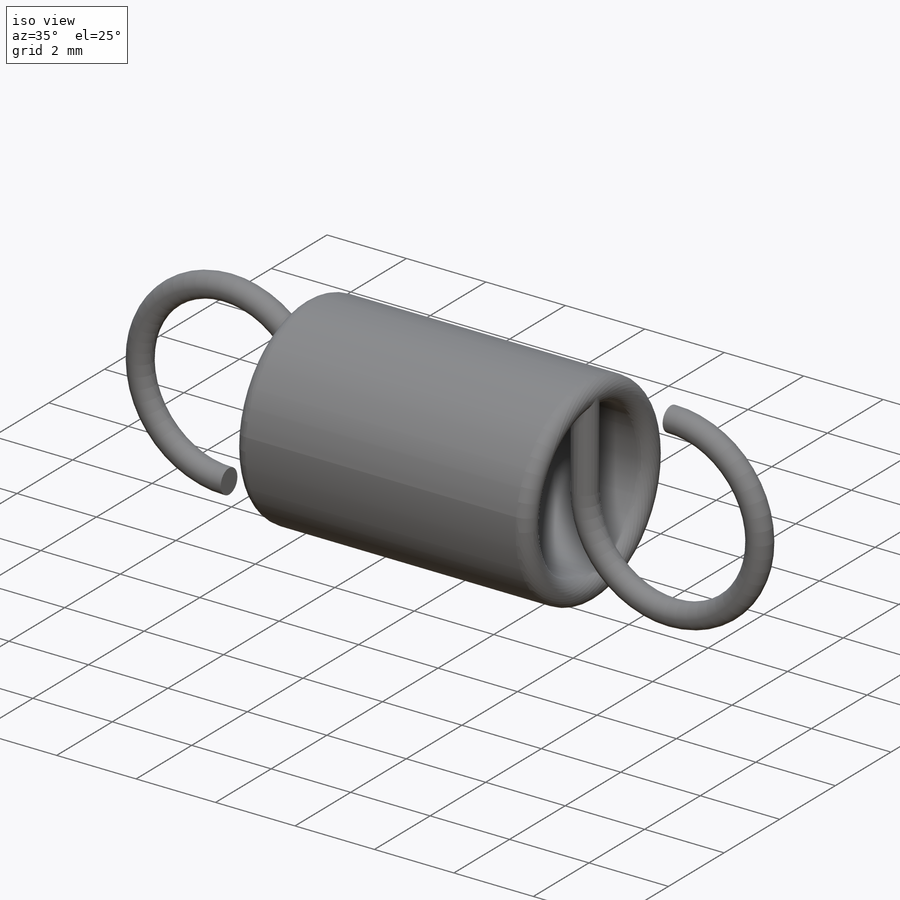
[diagram: iso view]
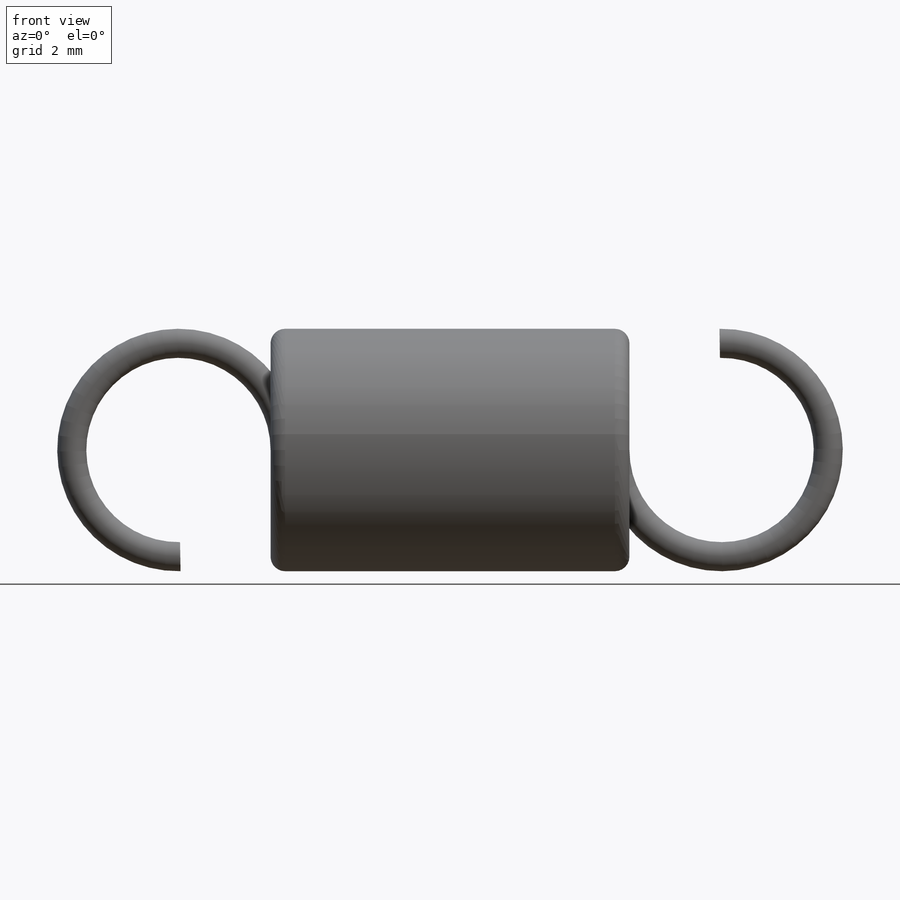
[diagram: front view]
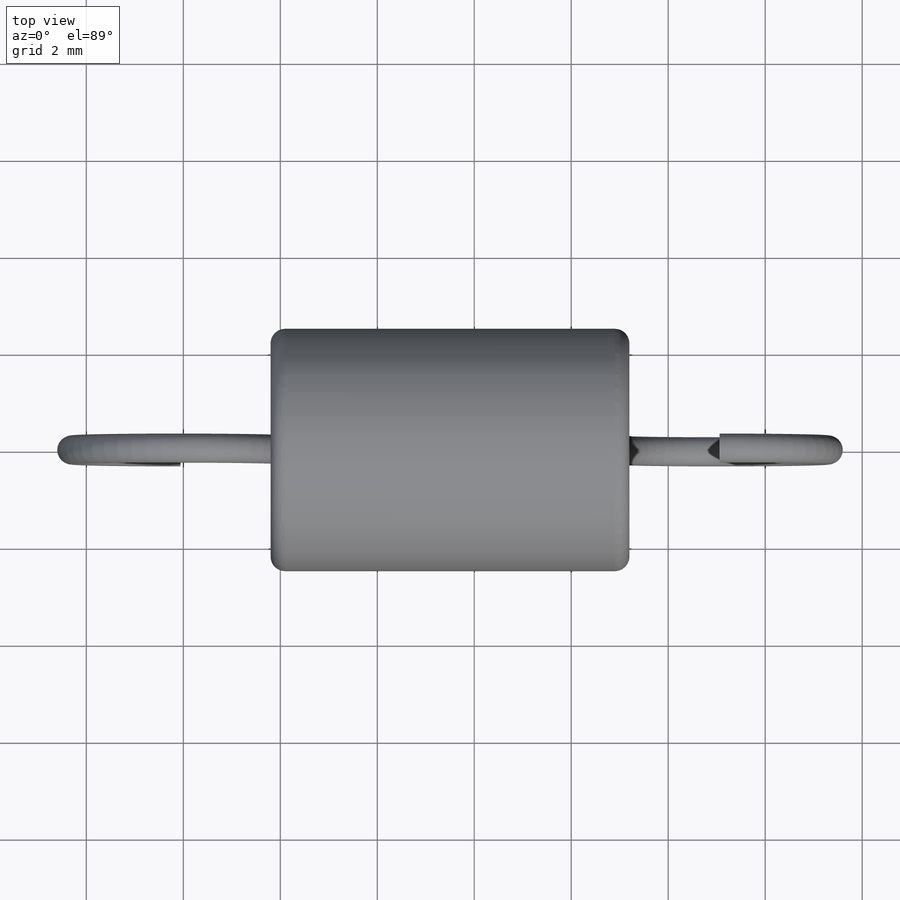
[diagram: top view]
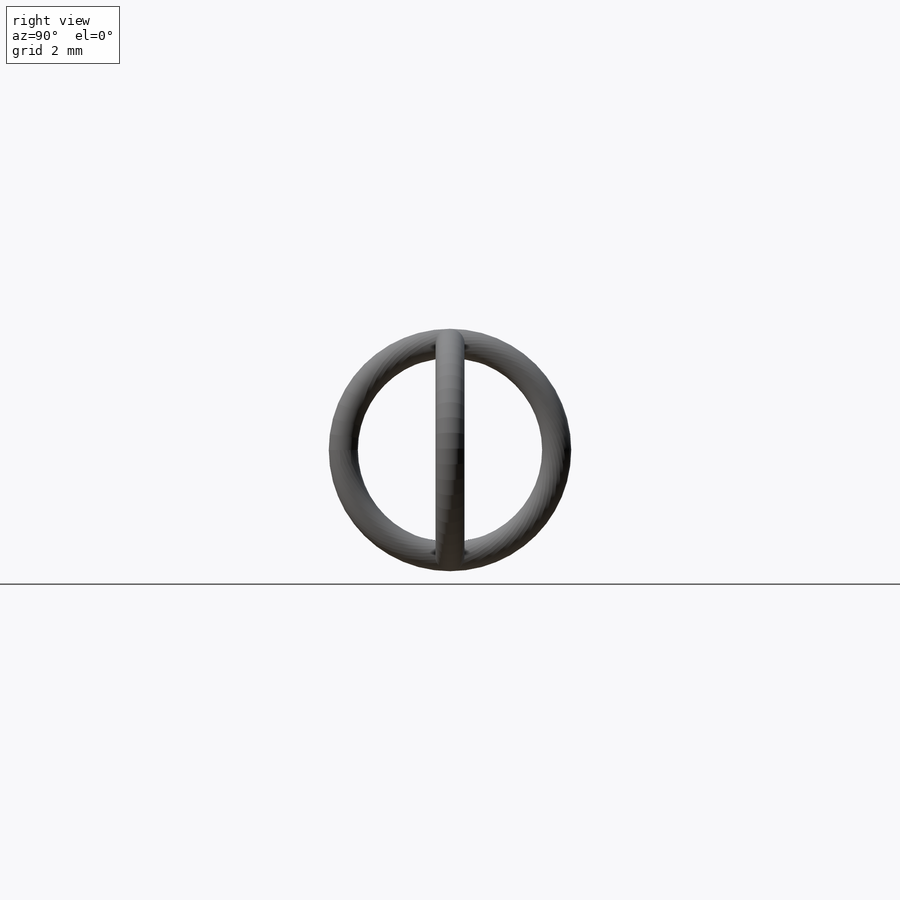
[diagram: right view]
SOLIDWORKS PART (.sldprt)
format: sldprt  version: not decoded by parser v0  size: 231,936 bytes
history: native  units: mm
features: plane x5, sketch x5, revolve x5, material x1 (+16 scaffold rows collapsed)
feature tree (32):
  scaffold x16  (default folders/planes/origin — collapsed)
  material  "Material <not specified>"
  plane  "Plane1"
  sketch  "Sketch1"
  revolve  "Revolve1"  Angle=360deg
  plane  "Plane2"
  sketch  "Sketch2"
  revolve  "Revolve2"  Angle=360deg
  plane  "Plane3"
  sketch  "Sketch3"
  revolve  "Revolve3"  Angle=271deg
  plane  "Plane4"
  sketch  "Sketch4"
  revolve  "Revolve4"  Angle=360deg
  plane  "Plane5"
  sketch  "Sketch5"
  revolve  "Revolve5"  Angle=271deg
decode coverage: 5 of 10 modeling features carry decoded parameters
note: suppression state not decoded; provenance and decode notes live in map.json
